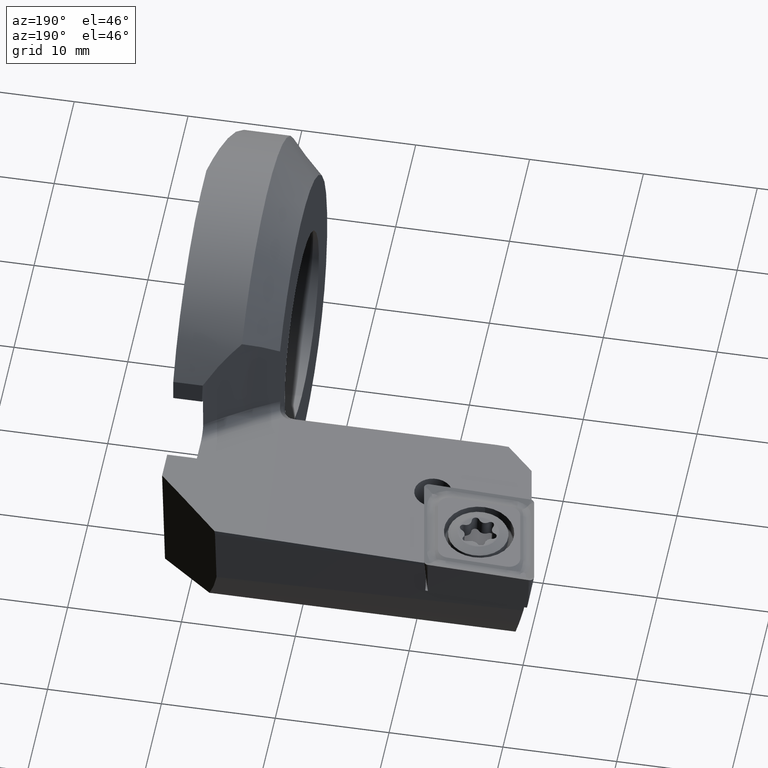
[diagram: clean part render]
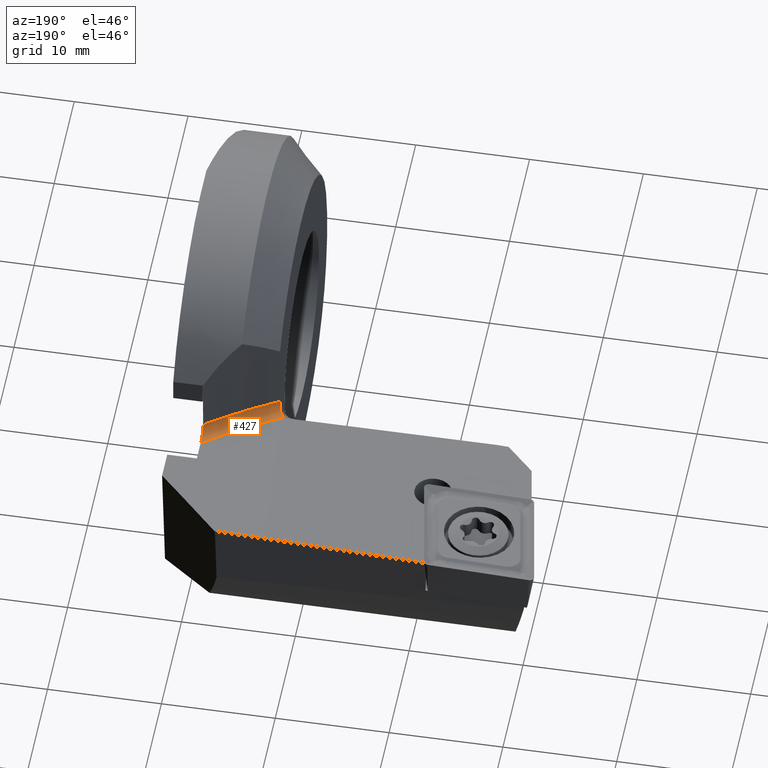
[diagram: same view with one face highlighted and labeled with its STEP entity id]
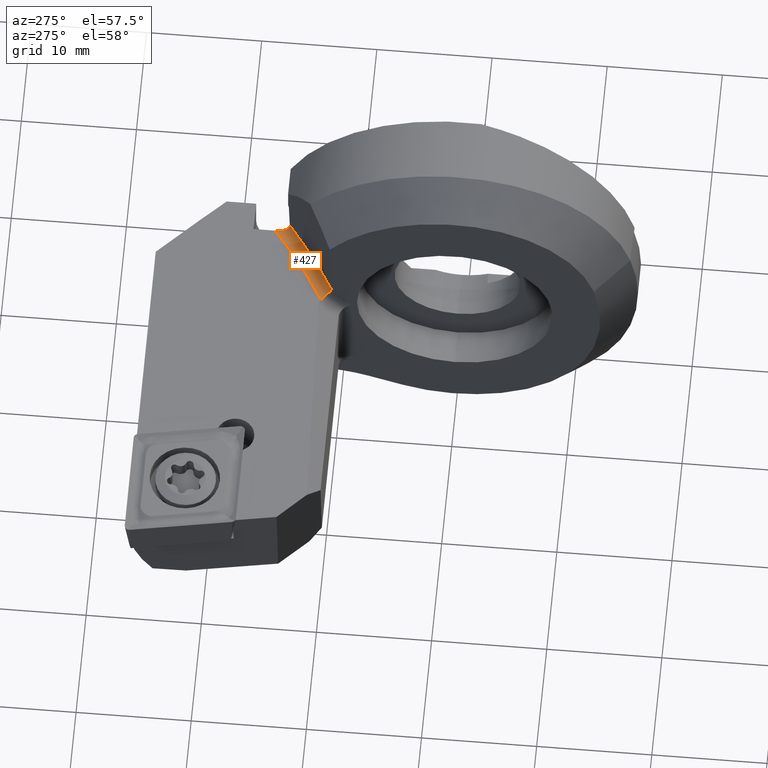
[diagram: same view with one face highlighted and labeled with its STEP entity id]
A machine part, auxiliary view. The second image highlights one B-rep face of the part: STEP entity #427.
A second angle (auxiliary view) of the same face is appended — the face is thin or edge-on in the first view.
In plain terms, the highlighted toroidal blend (fillet) surface has major radius 49 mm and minor (blend) radius 1 mm.
Its self-contained STEP definition (entity closure, byte-faithful):
#155 = B_SPLINE_CURVE_WITH_KNOTS ( 'NONE', 3,
 ( #1583, #1179, #4414, #870, #526, #4065 ),
 .UNSPECIFIED., .F., .F.,
 ( 4, 2, 4 ),
 ( 0.0001793644461006486600, 0.0004383445231313978600, 0.0006973246001621470100 ),
 .UNSPECIFIED. ) ;
#182 = CARTESIAN_POINT ( 'NONE',  ( -1.000000000000000000, 14.88611019528354300, 1.685289102582322700 ) ) ;
#212 = DIRECTION ( 'NONE',  ( -0.9993908270190955400, 0.0000000000000000000, -0.03489949670250455700 ) ) ;
#256 = CARTESIAN_POINT ( 'NONE',  ( -7.236237791637025300, 11.27123825225751100, 0.8539947316098713800 ) ) ;
#280 = EDGE_CURVE ( 'NONE', #2599, #1480, #2579, .T. ) ;
#354 = CARTESIAN_POINT ( 'NONE',  ( -7.049999999999990100, 10.72570673988478300, 1.773567827162797300 ) ) ;
#374 = ORIENTED_EDGE ( 'NONE', *, *, #634, .T. ) ;
#427 = ADVANCED_FACE ( 'NONE', ( #3037 ), #3969, .F. ) ;
#505 = CARTESIAN_POINT ( 'NONE',  ( -1.000000000000000000, 15.14271192536184300, 1.317499147486066200 ) ) ;
#526 = CARTESIAN_POINT ( 'NONE',  ( -7.049999999999995400, 10.72395738158254200, 1.686963489738692900 ) ) ;
#535 = CARTESIAN_POINT ( 'NONE',  ( -7.291453969560779800, 11.33403348673824600, 0.8186854507403451600 ) ) ;
#580 = CARTESIAN_POINT ( 'NONE',  ( -32.08140954703226600, 54.00000000000000000, 0.8994517443171855500 ) ) ;
#634 = EDGE_CURVE ( 'NONE', #789, #2599, #1997, .T. ) ;
#772 = CIRCLE ( 'NONE', #4189, 50.00000000000000700 ) ;
#789 = VERTEX_POINT ( 'NONE', #3086 ) ;
#870 = CARTESIAN_POINT ( 'NONE',  ( -7.049999999999992700, 10.73550607019042300, 1.599498754036754700 ) ) ;
#996 = CARTESIAN_POINT ( 'NONE',  ( -7.145450085470172600, 11.14711899992661300, 0.9454448706926438200 ) ) ;
#1179 = CARTESIAN_POINT ( 'NONE',  ( -7.049999999999993600, 10.81972144723946300, 1.353111901260155800 ) ) ;
#1183 = EDGE_CURVE ( 'NONE', #1480, #2426, #3242, .T. ) ;
#1215 = DIRECTION ( 'NONE',  ( -0.9993908270190956500, 0.0000000000000000000, -0.03489949670250456400 ) ) ;
#1250 = CARTESIAN_POINT ( 'NONE',  ( -7.553935628198414200, 11.56908838047949400, 0.7553604629528980500 ) ) ;
#1480 = VERTEX_POINT ( 'NONE', #1488 ) ;
#1488 = CARTESIAN_POINT ( 'NONE',  ( -7.553935628198414200, 11.56908838047949400, 0.7553604629528980500 ) ) ;
#1583 = CARTESIAN_POINT ( 'NONE',  ( -7.049999999999994500, 10.86598943958381200, 1.280203001956927500 ) ) ;
#1604 = CARTESIAN_POINT ( 'NONE',  ( -1.000000000000000200, 15.38515902871427200, 1.148154302541509300 ) ) ;
#1630 = ORIENTED_EDGE ( 'NONE', *, *, #1183, .T. ) ;
#1643 = CARTESIAN_POINT ( 'NONE',  ( -7.109379662327969900, 11.08479931344521500, 1.002588547343944200 ) ) ;
#1836 = CARTESIAN_POINT ( 'NONE',  ( -1.000000000000000000, 15.03521904112887400, 1.427210721257873700 ) ) ;
#1993 = CARTESIAN_POINT ( 'NONE',  ( -7.049999999999994500, 10.86598943958381200, 1.280203001956927500 ) ) ;
#1997 = B_SPLINE_CURVE_WITH_KNOTS ( 'NONE', 3,
 ( #4087, #4006, #182, #1836, #505, #1604, #3976, #2667, #3670, #3039 ),
 .UNSPECIFIED., .F., .F.,
 ( 4, 2, 2, 2, 4 ),
 ( 0.006548147897758734400, 0.006991371806547813500, 0.007434595715336891700, 0.007877819624125970800, 0.008321043532915054300 ),
 .UNSPECIFIED. ) ;
#2012 = EDGE_CURVE ( 'NONE', #2426, #3695, #155, .T. ) ;
#2249 = DIRECTION ( 'NONE',  ( 0.03489949670250456400, -0.0000000000000000000, -0.9993908270190957600 ) ) ;
#2312 = CARTESIAN_POINT ( 'NONE',  ( -7.482280925472860400, 11.51369641737808700, 0.7578627003097824200 ) ) ;
#2330 = DIRECTION ( 'NONE',  ( 0.03489949670250455700, -0.0000000000000000000, -0.9993908270190955400 ) ) ;
#2385 = CARTESIAN_POINT ( 'NONE',  ( -7.062044620054749100, 10.96933976547760100, 1.130850562412369300 ) ) ;
#2426 = VERTEX_POINT ( 'NONE', #2914 ) ;
#2579 = CIRCLE ( 'NONE', #3564, 49.00000000000001400 ) ;
#2599 = VERTEX_POINT ( 'NONE', #3373 ) ;
#2667 = CARTESIAN_POINT ( 'NONE',  ( -1.000000000000000200, 15.80897962653511600, 1.003925016457168700 ) ) ;
#2683 = CARTESIAN_POINT ( 'NONE',  ( -7.415162103071711600, 11.45581528807482600, 0.7705605175689856900 ) ) ;
#2914 = CARTESIAN_POINT ( 'NONE',  ( -7.049999999999994500, 10.86598943958381200, 1.280203001956927500 ) ) ;
#3010 = EDGE_CURVE ( 'NONE', #789, #3695, #772, .T. ) ;
#3037 = FACE_OUTER_BOUND ( 'NONE', #4537, .T. ) ;
#3039 = CARTESIAN_POINT ( 'NONE',  ( -0.9999999999999974500, 16.10621695585101100, 0.9842289382889911600 ) ) ;
#3046 = CARTESIAN_POINT ( 'NONE',  ( -32.04651005032976500, 54.00000000000000000, -0.09993908270191503900 ) ) ;
#3086 = CARTESIAN_POINT ( 'NONE',  ( -1.000000000000000900, 14.84941997622463500, 1.984838482587805600 ) ) ;
#3165 = ORIENTED_EDGE ( 'NONE', *, *, #2012, .T. ) ;
#3242 = B_SPLINE_CURVE_WITH_KNOTS ( 'NONE', 3,
 ( #1250, #2312, #2683, #535, #256, #996, #1643, #2385, #4141, #1993 ),
 .UNSPECIFIED., .F., .F.,
 ( 4, 2, 2, 2, 4 ),
 ( 2.491306920542243800E-018, 0.0002684802546259439000, 0.0005369605092518853000, 0.0008054407638778269200, 0.001073921018503768400 ),
 .UNSPECIFIED. ) ;
#3373 = CARTESIAN_POINT ( 'NONE',  ( -0.9999999999999974500, 16.10621695585101100, 0.9842289382889911600 ) ) ;
#3453 = ORIENTED_EDGE ( 'NONE', *, *, #280, .T. ) ;
#3564 = AXIS2_PLACEMENT_3D ( 'NONE', #3046, #4092, #3727 ) ;
#3670 = CARTESIAN_POINT ( 'NONE',  ( -1.000000000000000000, 15.95797022755687800, 0.9842289382889936000 ) ) ;
#3695 = VERTEX_POINT ( 'NONE', #354 ) ;
#3727 = DIRECTION ( 'NONE',  ( -0.9993908270190956500, 0.0000000000000000000, -0.03489949670250455700 ) ) ;
#3847 = AXIS2_PLACEMENT_3D ( 'NONE', #580, #2330, #212 ) ;
#3969 = TOROIDAL_SURFACE ( 'NONE', #3847, 49.00000000000000000, 1.000000000000000000 ) ;
#3976 = CARTESIAN_POINT ( 'NONE',  ( -1.000000000000000000, 15.52320688969337100, 1.085560030210915800 ) ) ;
#4006 = CARTESIAN_POINT ( 'NONE',  ( -1.000000000000000000, 14.84529302407807600, 1.835976731687574100 ) ) ;
#4065 = CARTESIAN_POINT ( 'NONE',  ( -7.049999999999990100, 10.72570673988478300, 1.773567827162797300 ) ) ;
#4087 = CARTESIAN_POINT ( 'NONE',  ( -1.000000000000000900, 14.84941997622463500, 1.984838482587805600 ) ) ;
#4092 = DIRECTION ( 'NONE',  ( 0.03489949670250456400, -0.0000000000000000000, -0.9993908270190957600 ) ) ;
#4141 = CARTESIAN_POINT ( 'NONE',  ( -7.049999999999993600, 10.91463672529727400, 1.203544822603646300 ) ) ;
#4189 = AXIS2_PLACEMENT_3D ( 'NONE', #4358, #2249, #1215 ) ;
#4269 = ORIENTED_EDGE ( 'NONE', *, *, #3010, .F. ) ;
#4358 = CARTESIAN_POINT ( 'NONE',  ( -32.08140954703226600, 54.00000000000000000, 0.8994517443171867700 ) ) ;
#4414 = CARTESIAN_POINT ( 'NONE',  ( -7.049999999999995400, 10.78302088534121900, 1.433733294533206600 ) ) ;
#4537 = EDGE_LOOP ( 'NONE', ( #3453, #1630, #3165, #4269, #374 ) ) ;